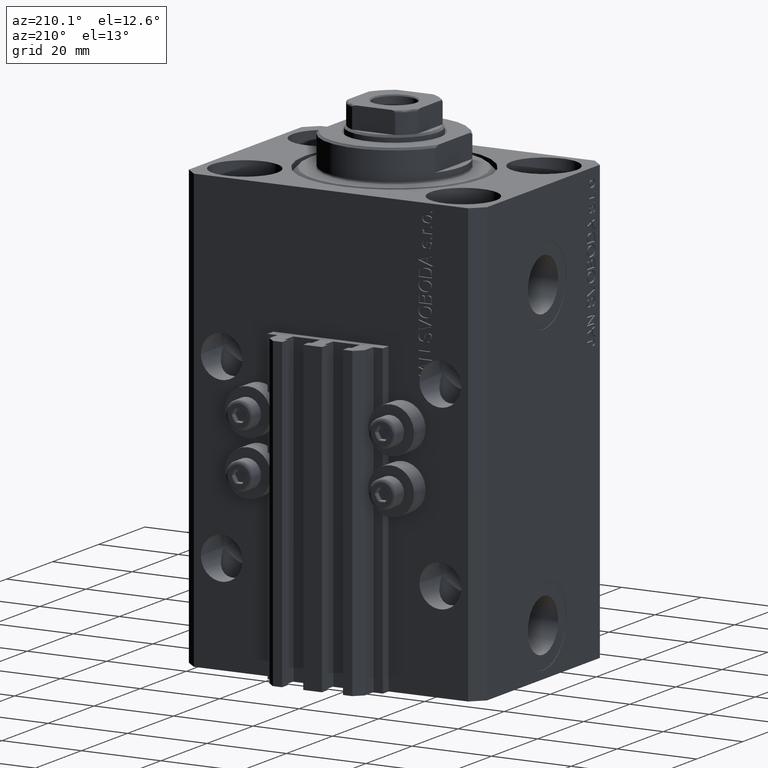
[diagram: clean part render]
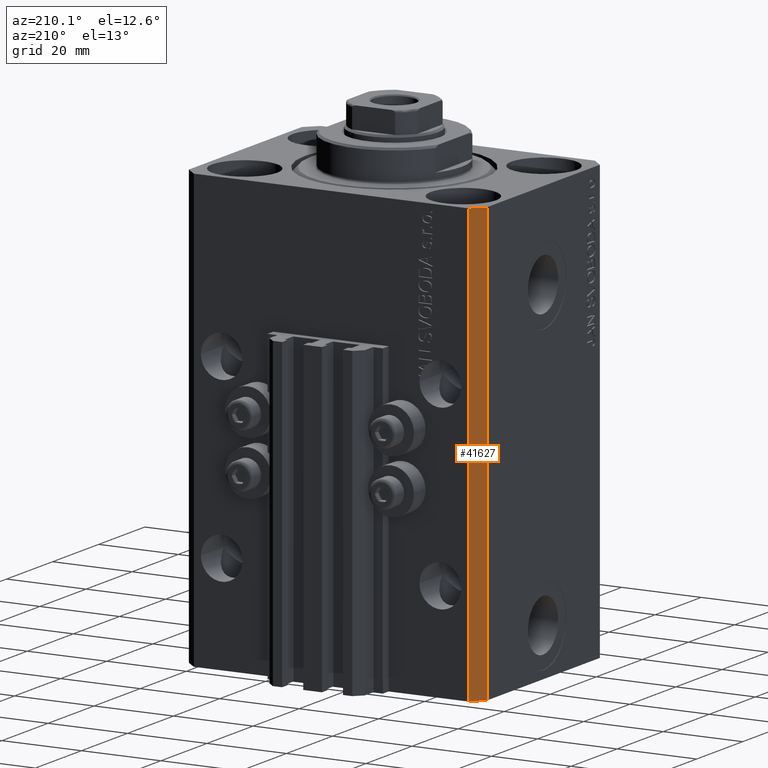
[diagram: same view with one face highlighted and labeled with its STEP entity id]
A machine part, auxiliary view. The second image highlights one B-rep face of the part: STEP entity #41627.
In plain terms, the highlighted planar face has unit normal (-0.7071, 0.7071, 0).
Its self-contained STEP definition (entity closure, byte-faithful):
#870 = DIRECTION ( 'NONE',  ( 0.000000000000000000, 0.000000000000000000, 1.000000000000000000 ) ) ;
#1148 = CARTESIAN_POINT ( 'NONE',  ( -34.49999999999999289, 27.50000000000000000, -110.0000000000000000 ) ) ;
#3267 = ORIENTED_EDGE ( 'NONE', *, *, #16071, .F. ) ;
#3410 = VERTEX_POINT ( 'NONE', #17915 ) ;
#3883 = CARTESIAN_POINT ( 'NONE',  ( -34.49999999999999289, 27.50000000000000000, -110.0000000000000000 ) ) ;
#4306 = DIRECTION ( 'NONE',  ( -0.7071067811865471286, -0.7071067811865479058, 0.000000000000000000 ) ) ;
#4463 = LINE ( 'NONE', #29388, #35562 ) ;
#6610 = ORIENTED_EDGE ( 'NONE', *, *, #38482, .T. ) ;
#7484 = LINE ( 'NONE', #3883, #29302 ) ;
#10423 = DIRECTION ( 'NONE',  ( 0.000000000000000000, 0.000000000000000000, 1.000000000000000000 ) ) ;
#11272 = CARTESIAN_POINT ( 'NONE',  ( -34.49999999999999289, 27.50000000000000000, -110.0000000000000000 ) ) ;
#11972 = DIRECTION ( 'NONE',  ( -0.7071067811865479058, 0.7071067811865471286, 0.000000000000000000 ) ) ;
#13353 = VECTOR ( 'NONE', #14370, 1000.000000000000000 ) ;
#13852 = EDGE_LOOP ( 'NONE', ( #3267, #26728, #6610, #22697 ) ) ;
#14370 = DIRECTION ( 'NONE',  ( -0.7071067811865471286, -0.7071067811865479058, 0.000000000000000000 ) ) ;
#14724 = CARTESIAN_POINT ( 'NONE',  ( -34.49999999999999289, 27.50000000000000000, -110.0000000000000000 ) ) ;
#16071 = EDGE_CURVE ( 'NONE', #24274, #3410, #32562, .T. ) ;
#17915 = CARTESIAN_POINT ( 'NONE',  ( -37.49999999999999289, 24.50000000000000000, 0.000000000000000000 ) ) ;
#18358 = EDGE_CURVE ( 'NONE', #25629, #24274, #32679, .T. ) ;
#19424 = CARTESIAN_POINT ( 'NONE',  ( -34.49999999999999289, 27.50000000000000000, 0.000000000000000000 ) ) ;
#21091 = VECTOR ( 'NONE', #10423, 1000.000000000000000 ) ;
#21858 = EDGE_CURVE ( 'NONE', #31326, #3410, #4463, .T. ) ;
#22530 = AXIS2_PLACEMENT_3D ( 'NONE', #11272, #11972, #4306 ) ;
#22697 = ORIENTED_EDGE ( 'NONE', *, *, #21858, .T. ) ;
#24274 = VERTEX_POINT ( 'NONE', #19424 ) ;
#25629 = VERTEX_POINT ( 'NONE', #1148 ) ;
#26728 = ORIENTED_EDGE ( 'NONE', *, *, #18358, .F. ) ;
#28976 = CARTESIAN_POINT ( 'NONE',  ( -34.49999999999999289, 27.50000000000000000, 0.000000000000000000 ) ) ;
#29302 = VECTOR ( 'NONE', #45048, 1000.000000000000000 ) ;
#29388 = CARTESIAN_POINT ( 'NONE',  ( -37.49999999999999289, 24.50000000000000000, -110.0000000000000000 ) ) ;
#29460 = FACE_OUTER_BOUND ( 'NONE', #13852, .T. ) ;
#31326 = VERTEX_POINT ( 'NONE', #45235 ) ;
#32562 = LINE ( 'NONE', #28976, #13353 ) ;
#32679 = LINE ( 'NONE', #14724, #21091 ) ;
#35562 = VECTOR ( 'NONE', #870, 1000.000000000000000 ) ;
#36634 = PLANE ( 'NONE',  #22530 ) ;
#38482 = EDGE_CURVE ( 'NONE', #25629, #31326, #7484, .T. ) ;
#41627 = ADVANCED_FACE ( 'NONE', ( #29460 ), #36634, .T. ) ;
#45048 = DIRECTION ( 'NONE',  ( -0.7071067811865471286, -0.7071067811865479058, 0.000000000000000000 ) ) ;
#45235 = CARTESIAN_POINT ( 'NONE',  ( -37.49999999999999289, 24.50000000000000000, -110.0000000000000000 ) ) ;